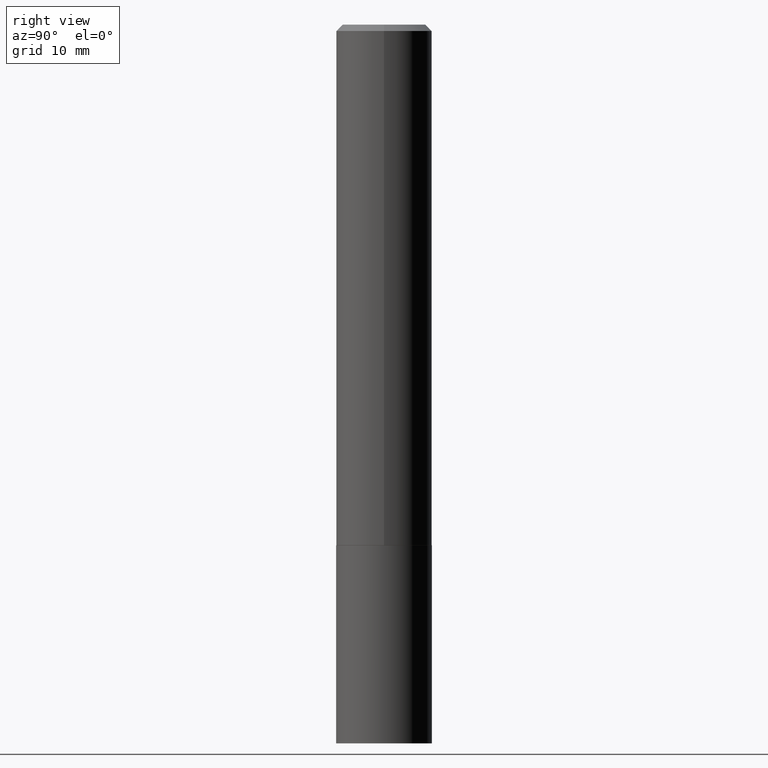
[diagram: clean part render]
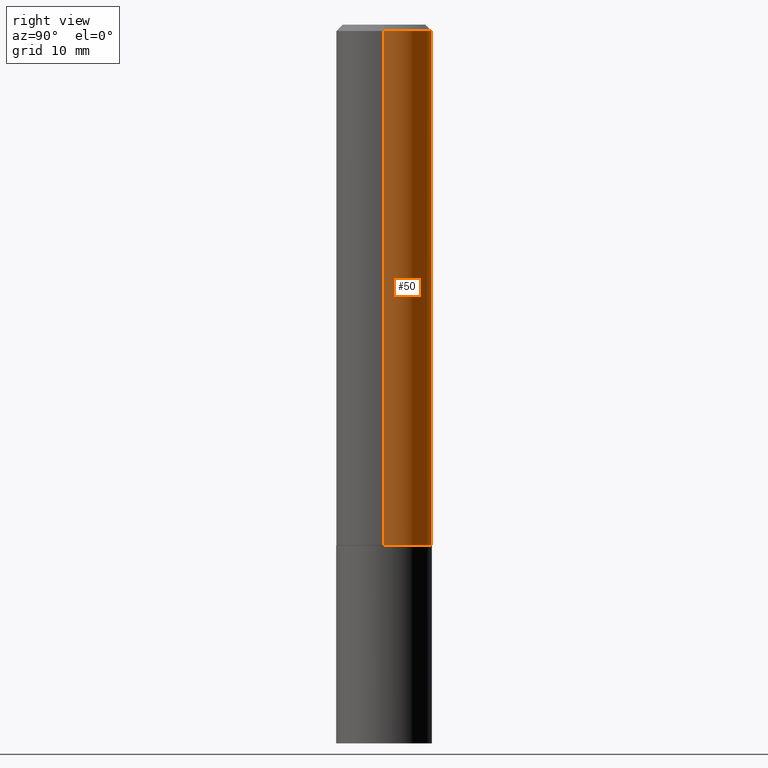
[diagram: same view with one face highlighted and labeled with its STEP entity id]
A machine part, right view. The second image highlights one B-rep face of the part: STEP entity #50.
In plain terms, the highlighted cylindrical surface (partial cylindrical patch) has radius 5.9995 mm, axis along (-0, 0, 1).
Its self-contained STEP definition (entity closure, byte-faithful):
#6 = CARTESIAN_POINT ( 'NONE',  ( 0.2362000000000002709, -1.061131008501208223E-14, -2.566799999999999304 ) ) ;
#10 = DIRECTION ( 'NONE',  ( 1.000000000000000000, -6.982962677686266711E-15, 4.876176775795936353E-29 ) ) ;
#20 = VERTEX_POINT ( 'NONE', #248 ) ;
#42 = EDGE_CURVE ( 'NONE', #286, #20, #326, .T. ) ;
#48 = CYLINDRICAL_SURFACE ( 'NONE', #249, 0.2362000000000001321 ) ;
#50 = ADVANCED_FACE ( 'NONE', ( #303 ), #48, .T. ) ;
#62 = EDGE_LOOP ( 'NONE', ( #195, #212, #76, #135 ) ) ;
#67 = CARTESIAN_POINT ( 'NONE',  ( -0.2362000000000001321, 1.678301941865357577E-15, -1.161852468318209457E-29 ) ) ;
#76 = ORIENTED_EDGE ( 'NONE', *, *, #341, .F. ) ;
#82 = DIRECTION ( 'NONE',  ( 1.000000000000000000, -6.982962677686265133E-15, 0.000000000000000000 ) ) ;
#88 = DIRECTION ( 'NONE',  ( -2.445468806185136877E-29, 3.491481338843145188E-15, 1.000000000000000000 ) ) ;
#130 = CARTESIAN_POINT ( 'NONE',  ( -0.2362000000000002709, -7.283632358677226158E-15, -2.566799999999999304 ) ) ;
#135 = ORIENTED_EDGE ( 'NONE', *, *, #322, .F. ) ;
#146 = VECTOR ( 'NONE', #299, 39.37007874015748143 ) ;
#175 = CIRCLE ( 'NONE', #354, 0.2362000000000002709 ) ;
#188 = DIRECTION ( 'NONE',  ( -2.445468806185136597E-29, 3.491481338843145583E-15, 1.000000000000000000 ) ) ;
#195 = ORIENTED_EDGE ( 'NONE', *, *, #285, .T. ) ;
#200 = VERTEX_POINT ( 'NONE', #6 ) ;
#209 = AXIS2_PLACEMENT_3D ( 'NONE', #280, #223, #316 ) ;
#212 = ORIENTED_EDGE ( 'NONE', *, *, #42, .T. ) ;
#217 = DIRECTION ( 'NONE',  ( -2.445468806185136597E-29, 3.491481338843145583E-15, 1.000000000000000000 ) ) ;
#223 = DIRECTION ( 'NONE',  ( -2.445468806185136597E-29, 3.491481338843145583E-15, 1.000000000000000000 ) ) ;
#226 = LINE ( 'NONE', #359, #243 ) ;
#232 = VERTEX_POINT ( 'NONE', #342 ) ;
#243 = VECTOR ( 'NONE', #88, 39.37007874015748143 ) ;
#248 = CARTESIAN_POINT ( 'NONE',  ( -0.2361999999999999933, -2.857219604325358644E-15, -0.03125000000000019429 ) ) ;
#249 = AXIS2_PLACEMENT_3D ( 'NONE', #270, #217, #10 ) ;
#270 = CARTESIAN_POINT ( 'NONE',  ( 0.000000000000000000, 0.000000000000000000, 0.000000000000000000 ) ) ;
#280 = CARTESIAN_POINT ( 'NONE',  ( 7.642090019328599159E-31, -1.091087918388489774E-16, -0.03125000000000019429 ) ) ;
#285 = EDGE_CURVE ( 'NONE', #200, #286, #175, .T. ) ;
#286 = VERTEX_POINT ( 'NONE', #130 ) ;
#299 = DIRECTION ( 'NONE',  ( -2.445468806185136877E-29, 3.491481338843145188E-15, 1.000000000000000000 ) ) ;
#303 = FACE_OUTER_BOUND ( 'NONE', #62, .T. ) ;
#316 = DIRECTION ( 'NONE',  ( 1.000000000000000000, -6.982962677686266711E-15, 0.000000000000000000 ) ) ;
#322 = EDGE_CURVE ( 'NONE', #200, #232, #226, .T. ) ;
#326 = LINE ( 'NONE', #67, #146 ) ;
#334 = CIRCLE ( 'NONE', #209, 0.2361999999999999933 ) ;
#335 = CARTESIAN_POINT ( 'NONE',  ( 6.277029331716007931E-29, -8.961934300542585708E-15, -2.566799999999999304 ) ) ;
#341 = EDGE_CURVE ( 'NONE', #232, #20, #334, .T. ) ;
#342 = CARTESIAN_POINT ( 'NONE',  ( 0.2361999999999999933, -1.758484576308345231E-15, -0.03125000000000019429 ) ) ;
#354 = AXIS2_PLACEMENT_3D ( 'NONE', #335, #188, #82 ) ;
#359 = CARTESIAN_POINT ( 'NONE',  ( 0.2362000000000001321, -1.649375784469497117E-15, 1.151752954443000789E-29 ) ) ;